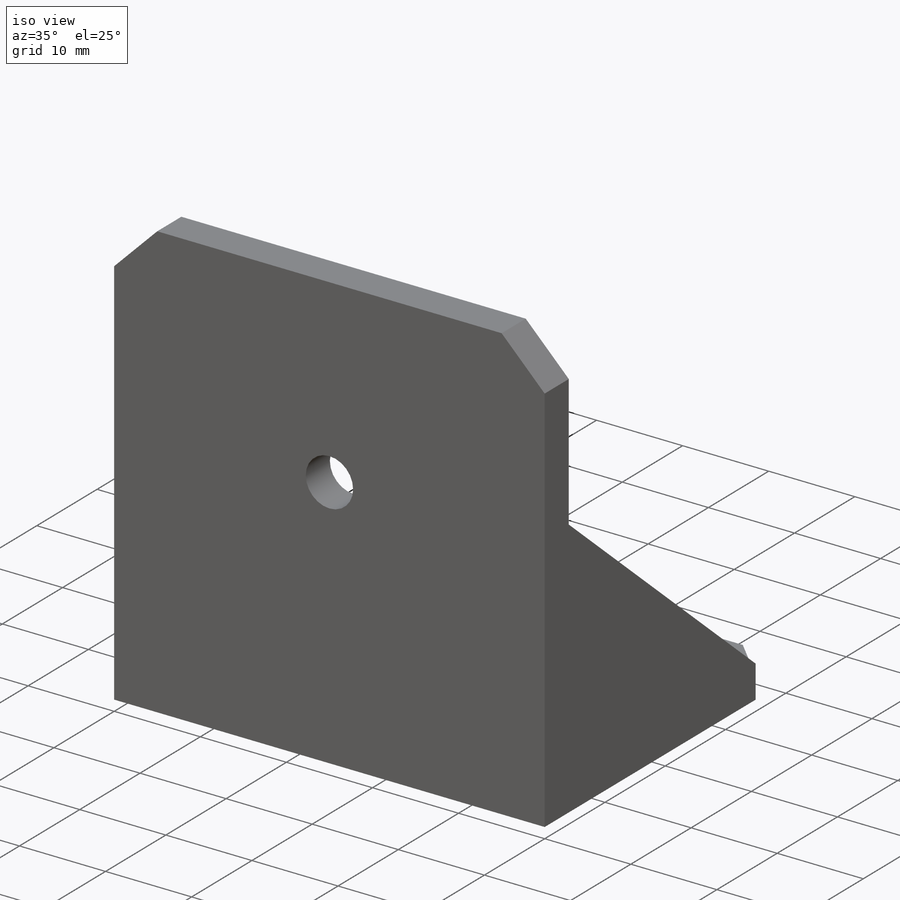
[diagram: iso view]
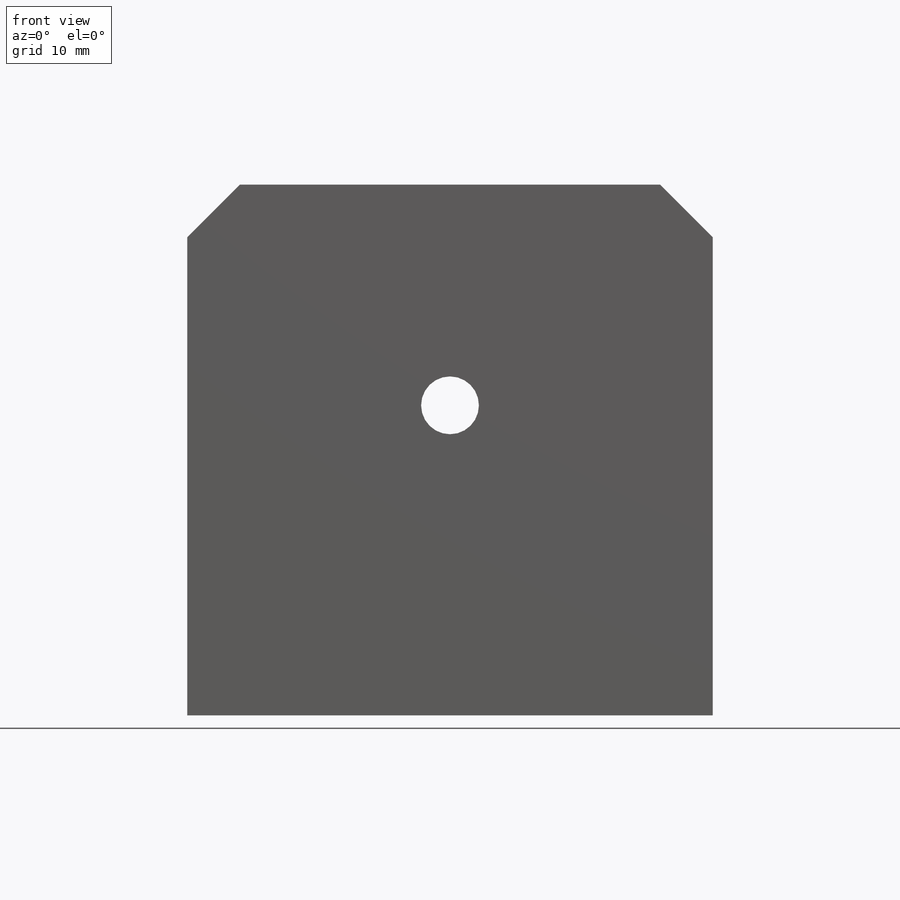
[diagram: front view]
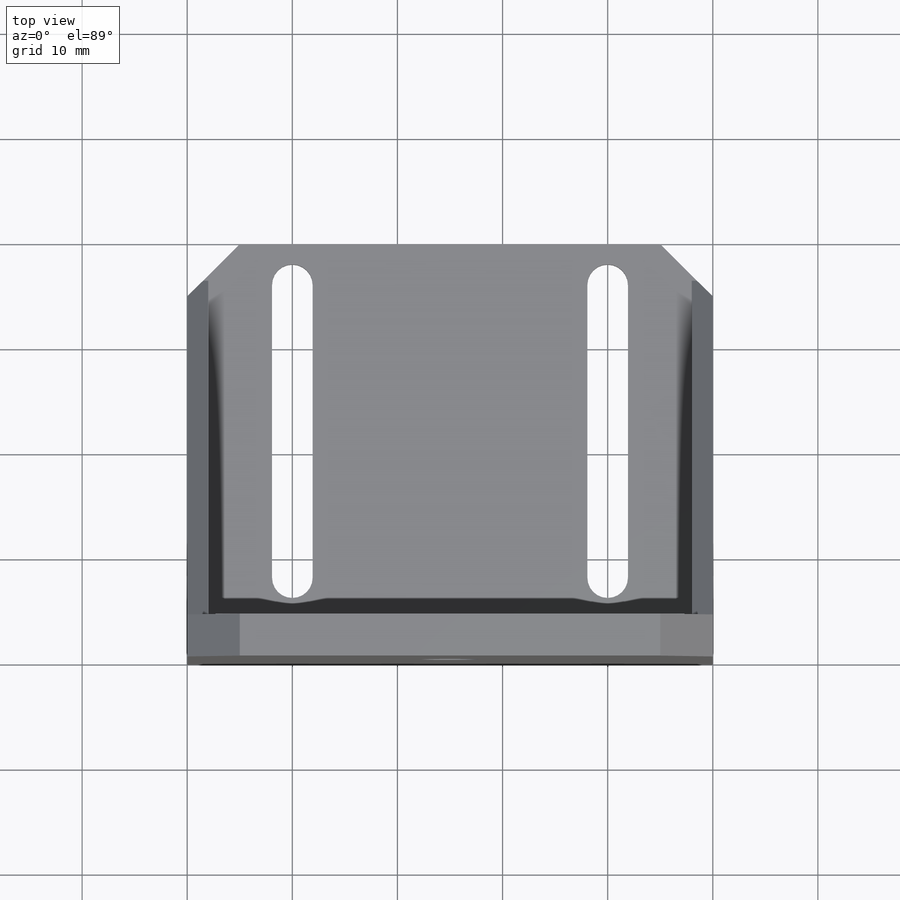
[diagram: top view]
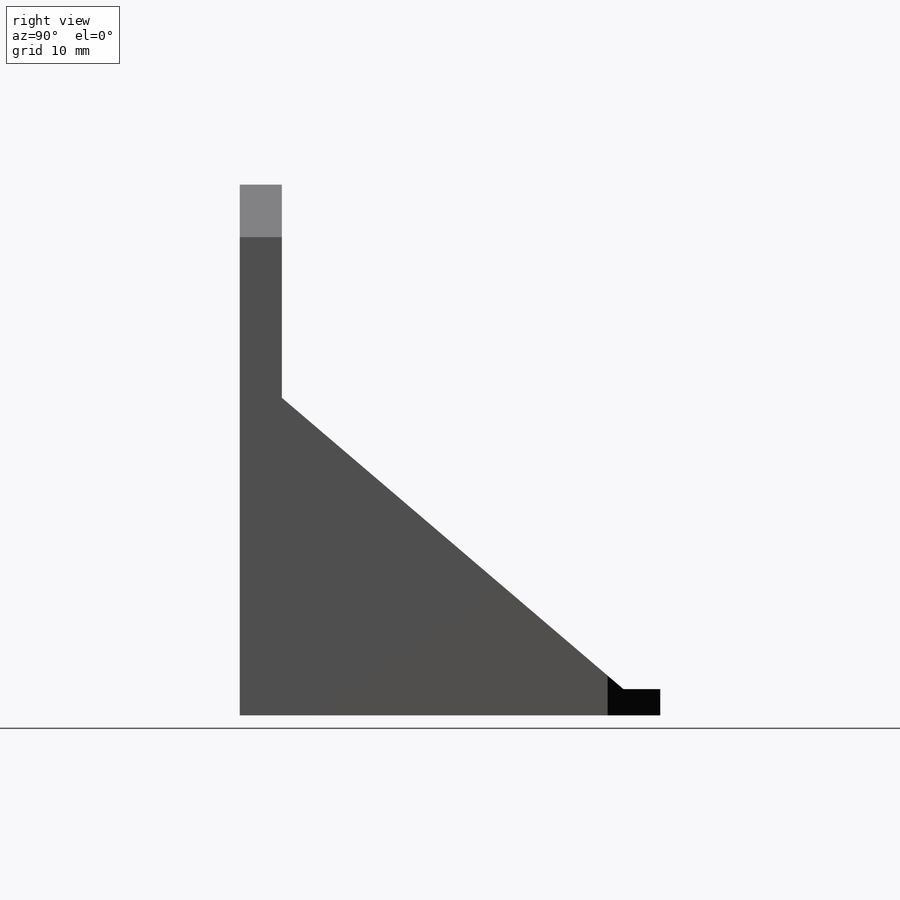
[diagram: right view]
SOLIDWORKS PART (.sldprt)
format: sldprt  version: not decoded by parser v0  size: 247,808 bytes
history: native  units: mm
features: sketch x7, plane x4, extrude x4, cut_extrude x2, material x1, mirror x1, chamfer x1 (+10 scaffold rows collapsed)
feature tree (30):
  scaffold x10  (default folders/planes/origin — collapsed)
  material  "ABS"
  plane  "Ebene vorne"
  plane  "Ebene oben"
  plane  "Ebene rechts"
  sketch  "Skizze1"  dims[c1.D3=2.0mm c1.D1=50.5mm c1.D2=40.0mm c2.D1=50.0mm c2.D5=2.5mm c2.D6=1.0mm c2.D7=5.0mm]
  sketch  "Skizze2"  dims[c1.D1=5.5mm c1.D3=11.05mm c2.D1=50.0mm c2.D2=31.0mm c2.D3=31.0mm c3.D2=31.0mm c3.D5=21.0mm]
  cut_extrude  "Schnitt-Linear austragen1"  Depth=10mm
  sketch  "Skizze3"  dims[c1.D1=~16.680854mm c1.D2=~8.799209mm c2.D1=34.0mm c2.D2=29.0mm c2.D3=1.0mm c2.D4=11.0mm]
  extrude  "Aufsatz-Linear austragen1"  Depth=2mm
  plane  "Ebene1"
  mirror  "Spiegeln1"
  sketch  "Skizze4"  dims[D1=30.0mm D2=25.0mm]
  cut_extrude  "Schnitt-Linear austragen2"  [1 undecoded]
  chamfer  "Fase1"  Distance=5mm Angle=45deg
  sketch  "Sketch1"  dims[D1=2.25mm]
  extrude  "Boss-Extrude1"  Depth=1.5mm
  sketch  "Sketch2"
  extrude  "Boss-Extrude2"  [1 undecoded]
  sketch  "Sketch3"
  extrude  "Boss-Extrude3"  [1 undecoded]
decode coverage: 9 of 15 modeling features carry decoded parameters
note: ~ marks probable driven/reference dimensions
note: 3 parameter values undecoded
summary: no parameter record found for 3 features
note: suppression state not decoded; provenance and decode notes live in map.json
